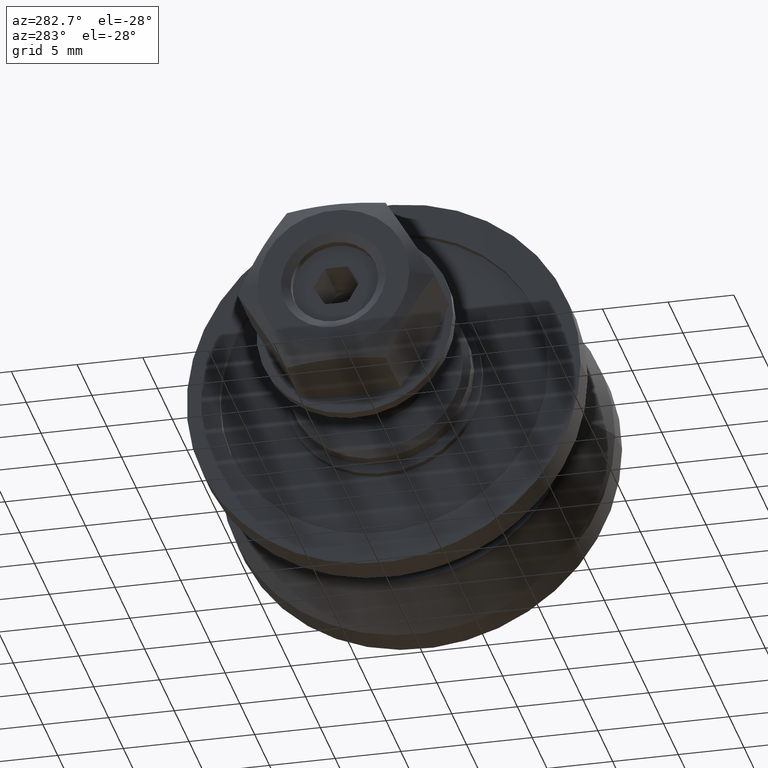
[diagram: clean part render]
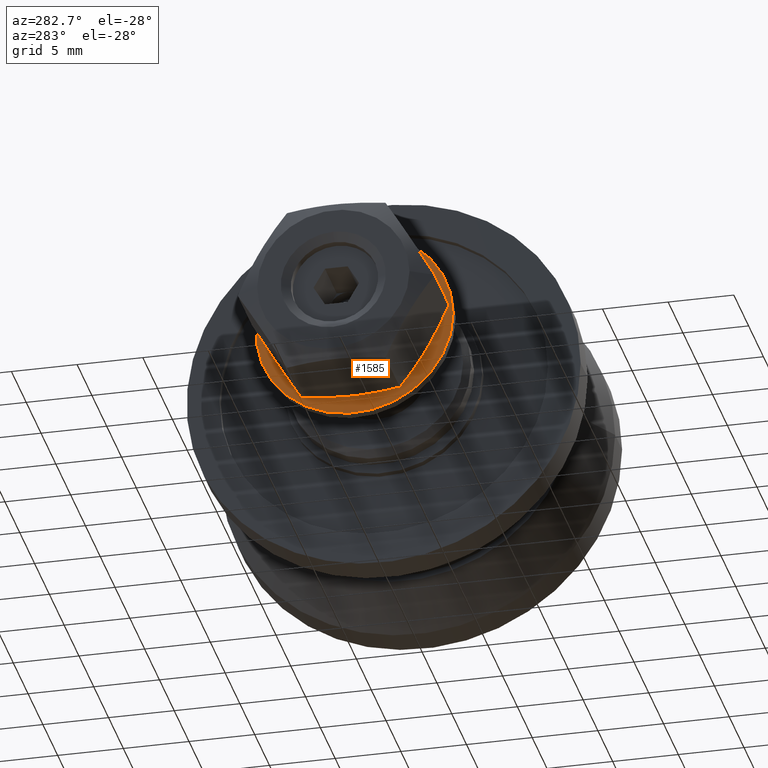
[diagram: same view with one face highlighted and labeled with its STEP entity id]
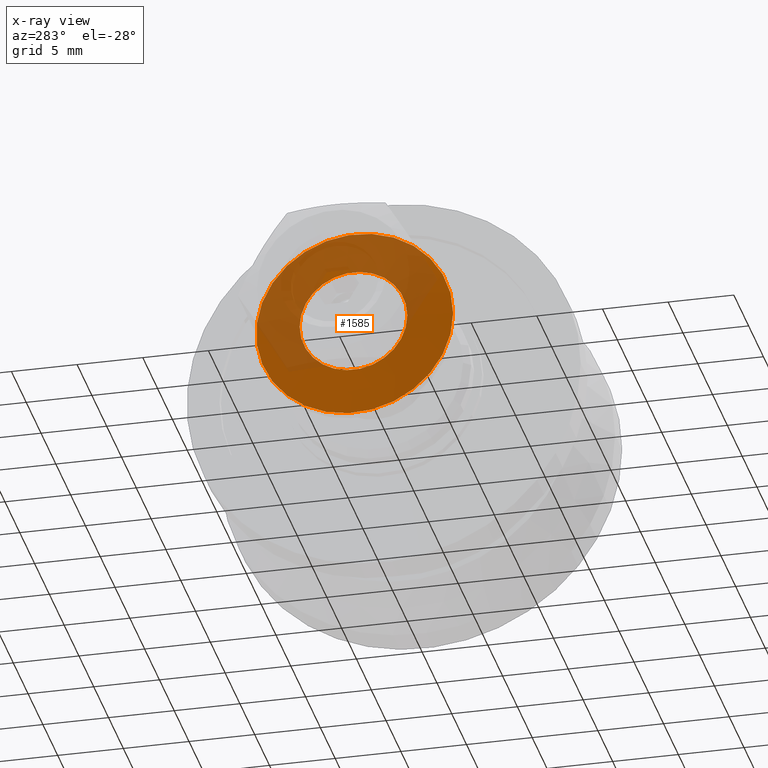
[diagram: x-ray of the same camera — body ghosted, the highlighted face saturated]
A machine part, auxiliary view. The second image highlights one B-rep face of the part: STEP entity #1585.
The next image is the same camera in x-ray: the body ghosted, the highlighted face saturated — about 49% of this face is hidden behind the body in this view.
In plain terms, the highlighted conical surface has half-angle 83.29 deg.
Its self-contained STEP definition (entity closure, byte-faithful):
#239=FACE_OUTER_BOUND('',#355,.T.);
#355=EDGE_LOOP('',(#1361,#1362,#1363,#1364));
#463=LINE('',#2813,#581);
#581=VECTOR('',#2302,5.8);
#673=CIRCLE('',#1883,7.5);
#674=CIRCLE('',#1884,4.1);
#799=VERTEX_POINT('',#2810);
#800=VERTEX_POINT('',#2812);
#993=EDGE_CURVE('',#799,#799,#673,.T.);
#994=EDGE_CURVE('',#799,#800,#463,.T.);
#995=EDGE_CURVE('',#800,#800,#674,.T.);
#1361=ORIENTED_EDGE('',*,*,#993,.F.);
#1362=ORIENTED_EDGE('',*,*,#994,.T.);
#1363=ORIENTED_EDGE('',*,*,#995,.T.);
#1364=ORIENTED_EDGE('',*,*,#994,.F.);
#1509=CONICAL_SURFACE('',#1882,5.8,1.45368758222803);
#1585=ADVANCED_FACE('',(#239),#1509,.T.);
#1882=AXIS2_PLACEMENT_3D('',#2809,#2298,#2299);
#1883=AXIS2_PLACEMENT_3D('',#2811,#2300,#2301);
#1884=AXIS2_PLACEMENT_3D('',#2814,#2303,#2304);
#2298=DIRECTION('center_axis',(0.,-1.,0.));
#2299=DIRECTION('ref_axis',(1.,0.,0.));
#2300=DIRECTION('center_axis',(0.,-1.,0.));
#2301=DIRECTION('ref_axis',(1.,0.,0.));
#2302=DIRECTION('',(0.993150604322876,0.116841247567397,1.21625870865527E-16));
#2303=DIRECTION('center_axis',(0.,-1.,0.));
#2304=DIRECTION('ref_axis',(1.,0.,0.));
#2809=CARTESIAN_POINT('Origin',(0.,1.,0.));
#2810=CARTESIAN_POINT('',(-7.5,0.8,-9.18485099360515E-16));
#2811=CARTESIAN_POINT('Origin',(0.,0.8,0.));
#2812=CARTESIAN_POINT('',(-4.1,1.2,-5.02105187650415E-16));
#2813=CARTESIAN_POINT('',(-5.8,1.,-7.10295143505465E-16));
#2814=CARTESIAN_POINT('Origin',(0.,1.2,0.));